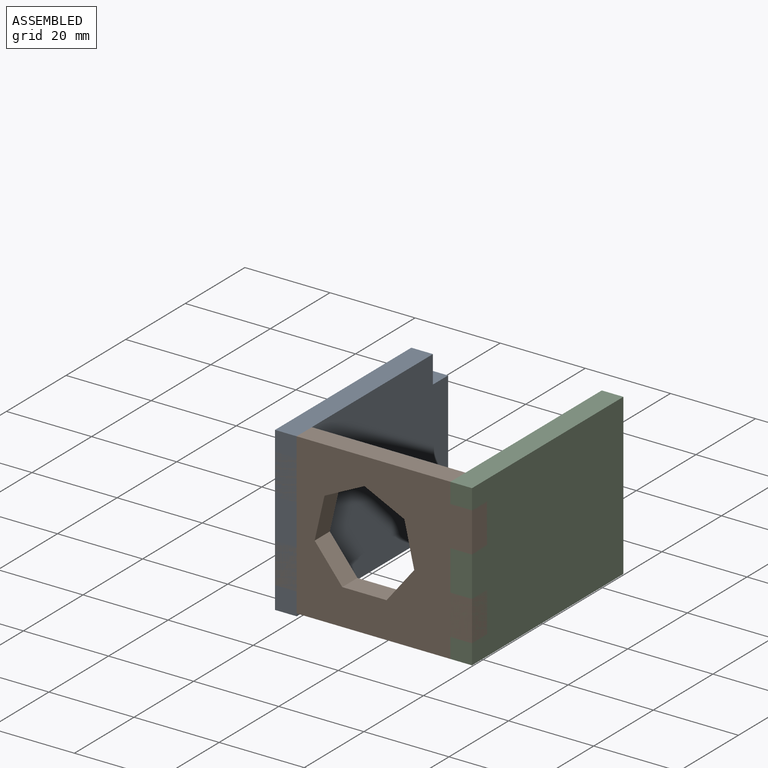
[diagram: assembled view]
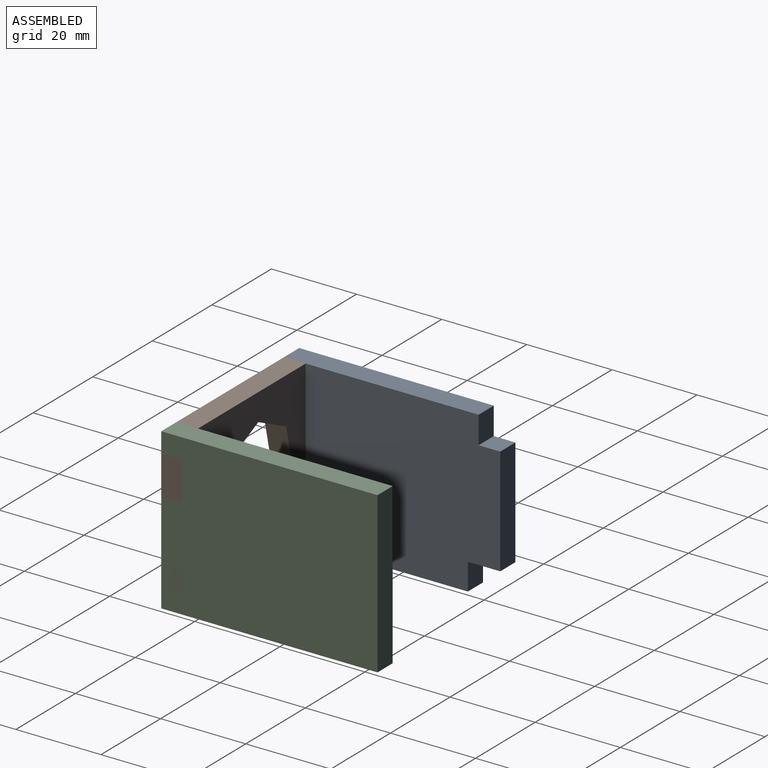
[diagram: assembled view, second angle]
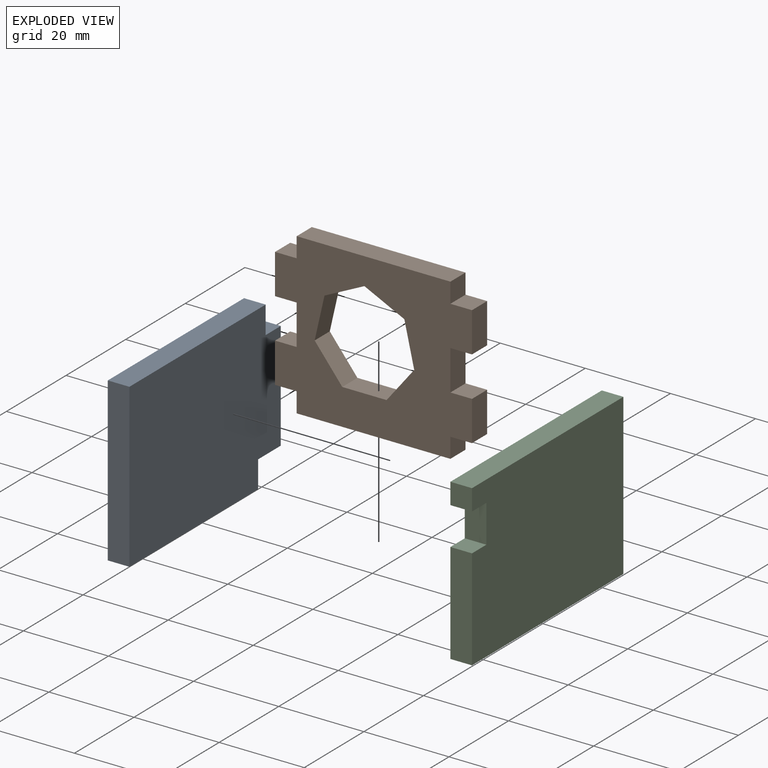
[diagram: exploded view]
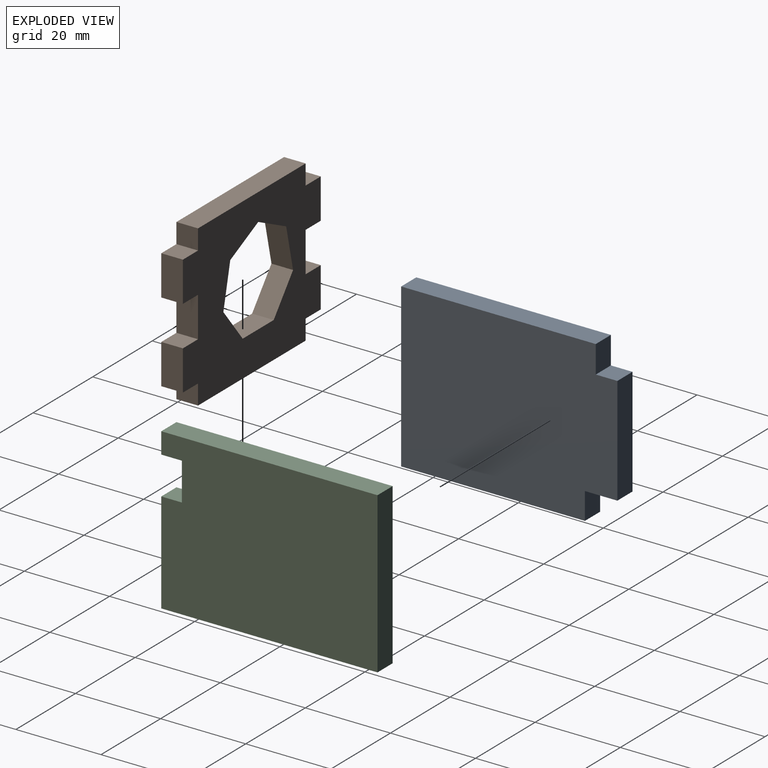
[diagram: exploded view, second angle]
ASSEMBLY  parts=3 mates=2
PART A: 10 faces, bbox 5.1x50.8x38.2 mm
  f0: plane 50.8x38.23mm, normal (1,0,0), area 1860.8mm2, adj f1,f3,f4,f5,f6,f7,f8,f9
  f1: plane 43.18x5.08mm, normal (0,0,-1), area 219.4mm2, adj f0,f2,f5,f9
  f2: plane 50.8x38.23mm, normal (-1,0,0), area 1860.8mm2, adj f1,f3,f4,f5,f6,f7,f8,f9
  f3: plane 25.42x5.08mm, normal (0,1,0), area 129.1mm2, adj f0,f2,f6,f8
  f4: plane 45.72x5.08mm, normal (0,0,1), area 232.3mm2, adj f0,f2,f5,f7
  f5: plane 38.23x5.08mm, normal (0,-1,0), area 194.2mm2, adj f0,f1,f2,f4
  f6: plane 5.08x5.08mm, normal (0,0,1), area 25.8mm2, adj f0,f2,f3,f7
  f7: plane 6.48x5.08mm, normal (0,1,0), area 32.9mm2, adj f0,f2,f4,f6
  f8: plane 7.62x5.08mm, normal (0,0,-1), area 38.7mm2, adj f0,f2,f3,f9
  f9: plane 6.33x5.08mm, normal (0,1,0), area 32.2mm2, adj f0,f1,f2,f8
PART B: 29 faces, bbox 46.3x5.1x37.6 mm
  f0: plane 9.44x5.08mm, normal (-1,0,0), area 48mm2, adj f8,f9,f25,f26
  f1: plane 5.08x4.7mm, normal (-1,0,0), area 23.9mm2, adj f7,f8,f9,f23
  f2: plane 9.44x5.08mm, normal (1,0,0), area 48mm2, adj f8,f9,f18,f20
  f3: plane 5.08x4.7mm, normal (1,0,0), area 23.9mm2, adj f7,f8,f9,f17
  f4: plane 5.08x4.69mm, normal (-1,0,0), area 23.8mm2, adj f5,f8,f9,f28
  f5: plane 36.12x5.08mm, normal (0,0,-1), area 183.5mm2, adj f4,f6,f8,f9
  f6: plane 5.08x4.69mm, normal (1,0,0), area 23.8mm2, adj f5,f8,f9,f21
  f7: plane 36.12x5.08mm, normal (0,0,1), area 183.5mm2, adj f1,f3,f8,f9
  f8: plane 46.28x37.62mm, normal (0,-1,0), area 1155.8mm2, adj f0,f1,f2,f3,f4,f5,f6,f7
  f9: plane 46.28x37.62mm, normal (0,1,0), area 1155.8mm2, adj f0,f1,f2,f3,f4,f5,f6,f7
  f10: plane 10.41x5.08mm, normal (0,0,1), area 52.9mm2, adj f8,f9,f11,f16
  f11: plane 8.14x6.49mm, normal (-0.78,0,0.62), area 52.9mm2, adj f8,f9,f10,f12
  f12: plane 10.15x5.08mm, normal (-0.97,0,-0.22), area 52.9mm2, adj f8,f9,f11,f13
  f13: plane 9.38x5.08mm, normal (-0.43,0,-0.9), area 52.9mm2, adj f8,f9,f12,f14
  f14: plane 9.38x5.08mm, normal (0.43,0,-0.9), area 52.9mm2, adj f8,f9,f13,f15
  f15: plane 10.15x5.08mm, normal (0.97,0,-0.22), area 52.9mm2, adj f8,f9,f14,f16
  f16: plane 8.14x6.49mm, normal (0.78,0,0.62), area 52.9mm2, adj f8,f9,f10,f15
  f17: plane 5.08x5.08mm, normal (0,0,1), area 25.8mm2, adj f3,f8,f9,f19
  f18: plane 5.08x5.08mm, normal (0,0,-1), area 25.8mm2, adj f2,f8,f9,f19
  f19: plane 9.4x5.08mm, normal (1,0,0), area 47.7mm2, adj f8,f9,f17,f18
  f20: plane 5.08x5.08mm, normal (0,0,1), area 25.8mm2, adj f2,f8,f9,f22
  f21: plane 5.08x5.08mm, normal (0,0,-1), area 25.8mm2, adj f6,f8,f9,f22
  f22: plane 9.4x5.08mm, normal (1,0,0), area 47.7mm2, adj f8,f9,f20,f21
  f23: plane 5.08x5.08mm, normal (0,0,1), area 25.8mm2, adj f1,f8,f9,f24
  f24: plane 9.4x5.08mm, normal (-1,0,0), area 47.7mm2, adj f8,f9,f23,f25
  f25: plane 5.08x5.08mm, normal (0,0,-1), area 25.8mm2, adj f0,f8,f9,f24
  f26: plane 5.08x5.08mm, normal (0,0,1), area 25.8mm2, adj f0,f8,f9,f27
  f27: plane 9.4x5.08mm, normal (-1,0,0), area 47.7mm2, adj f8,f9,f26,f28
  f28: plane 5.08x5.08mm, normal (0,0,-1), area 25.8mm2, adj f4,f8,f9,f27
PART C: 10 faces, bbox 5.1x50.8x37.6 mm
  f0: plane 23.78x5.08mm, normal (0,-1,0), area 120.8mm2, adj f3,f5,f6,f9
  f1: plane 50.8x5.08mm, normal (0,0,1), area 258.1mm2, adj f2,f4,f5,f6
  f2: plane 5.08x4.95mm, normal (0,-1,0), area 25.2mm2, adj f1,f5,f6,f7
  f3: plane 50.8x5.08mm, normal (0,0,-1), area 258.1mm2, adj f0,f4,f5,f6
  f4: plane 37.62x5.08mm, normal (0,1,0), area 191.1mm2, adj f1,f3,f5,f6
  f5: plane 50.8x37.62mm, normal (-1,0,0), area 1868.4mm2, adj f0,f1,f2,f3,f4,f7,f8,f9
  f6: plane 50.8x37.62mm, normal (1,0,0), area 1868.4mm2, adj f0,f1,f2,f3,f4,f7,f8,f9
  f7: plane 5.08x4.83mm, normal (0,0,-1), area 24.5mm2, adj f2,f5,f6,f8
  f8: plane 8.89x5.08mm, normal (0,-1,0), area 45.2mm2, adj f5,f6,f7,f9
  f9: plane 5.08x4.83mm, normal (0,0,1), area 24.5mm2, adj f0,f5,f6,f8
PLACE A t=(-44.33,-26.48,-75.14)mm
PLACE B t=(-39.25,-21.4,-74.53)mm
PLACE C t=(1.94,-21.4,-74.53)mm
MATE fastened C.f5 <-> B.f3  axis (-1,0,0) through (-3.14,-26.48,-36.91)mm
MATE fastened A.f0 <-> B.f1  axis (1,0,0) through (-39.25,-26.48,-36.91)mm
